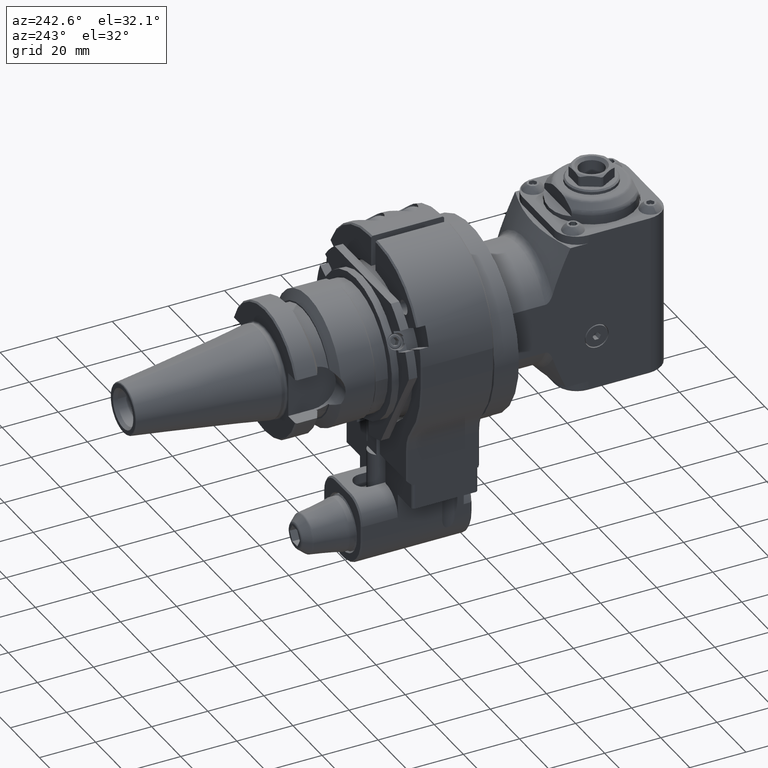
[diagram: clean part render]
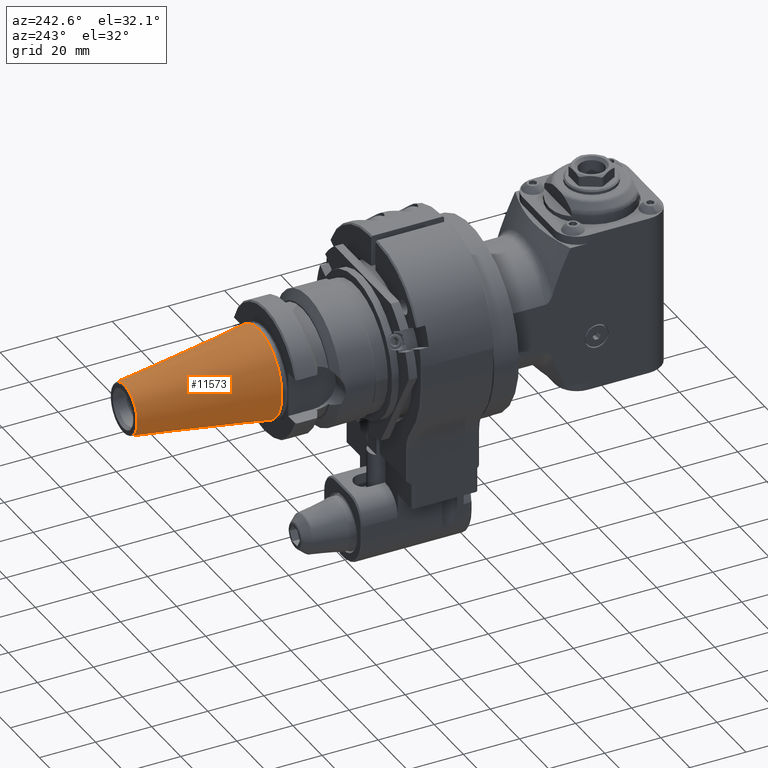
[diagram: same view with one face highlighted and labeled with its STEP entity id]
A machine part, auxiliary view. The second image highlights one B-rep face of the part: STEP entity #11573.
In plain terms, the highlighted conical surface has half-angle 8.297 deg.
Its self-contained STEP definition (entity closure, byte-faithful):
#233=CONICAL_SURFACE('',#12630,12.37703260579,0.144812411498922);
#883=LINE('',#19070,#1748);
#1748=VECTOR('',#14978,12.37703260579);
#2837=FACE_OUTER_BOUND('',#3617,.T.);
#3617=EDGE_LOOP('',(#9028,#9029,#9030,#9031,#9032));
#4352=CIRCLE('',#12628,8.879065211573);
#4354=CIRCLE('',#12631,15.875);
#4355=CIRCLE('',#12632,15.875);
#5226=VERTEX_POINT('',#19063);
#5227=VERTEX_POINT('',#19067);
#5228=VERTEX_POINT('',#19068);
#6595=EDGE_CURVE('',#5226,#5226,#4352,.T.);
#6597=EDGE_CURVE('',#5227,#5228,#4354,.T.);
#6598=EDGE_CURVE('',#5227,#5226,#883,.T.);
#6599=EDGE_CURVE('',#5228,#5227,#4355,.T.);
#9028=ORIENTED_EDGE('',*,*,#6597,.F.);
#9029=ORIENTED_EDGE('',*,*,#6598,.T.);
#9030=ORIENTED_EDGE('',*,*,#6595,.F.);
#9031=ORIENTED_EDGE('',*,*,#6598,.F.);
#9032=ORIENTED_EDGE('',*,*,#6599,.F.);
#11573=ADVANCED_FACE('',(#2837),#233,.T.);
#12628=AXIS2_PLACEMENT_3D('',#19064,#14970,#14971);
#12630=AXIS2_PLACEMENT_3D('',#19066,#14974,#14975);
#12631=AXIS2_PLACEMENT_3D('',#19069,#14976,#14977);
#12632=AXIS2_PLACEMENT_3D('',#19071,#14979,#14980);
#14970=DIRECTION('center_axis',(0.,1.,0.));
#14971=DIRECTION('ref_axis',(0.,0.,-1.));
#14974=DIRECTION('center_axis',(0.,-1.,0.));
#14975=DIRECTION('ref_axis',(0.,0.,-1.));
#14976=DIRECTION('center_axis',(0.,-1.,0.));
#14977=DIRECTION('ref_axis',(0.,0.,1.));
#14978=DIRECTION('',(1.76724869581176E-17,0.98953299358046,-0.144306807239621));
#14979=DIRECTION('center_axis',(0.,-1.,0.));
#14980=DIRECTION('ref_axis',(0.,0.,1.));
#19063=CARTESIAN_POINT('',(-1.08737187907735E-15,114.77215344828,8.879065211573));
#19064=CARTESIAN_POINT('Origin',(0.,114.77215344828,0.));
#19066=CARTESIAN_POINT('Origin',(0.,90.78607674647,0.));
#19067=CARTESIAN_POINT('',(0.,66.80000004466,15.875));
#19068=CARTESIAN_POINT('',(-1.94412679364602E-15,66.8000000446609,-15.8749999999967));
#19069=CARTESIAN_POINT('Origin',(0.,66.80000004466,0.));
#19070=CARTESIAN_POINT('',(-1.51574933636231E-15,90.78607674647,12.37703260579));
#19071=CARTESIAN_POINT('Origin',(0.,66.80000004466,0.));